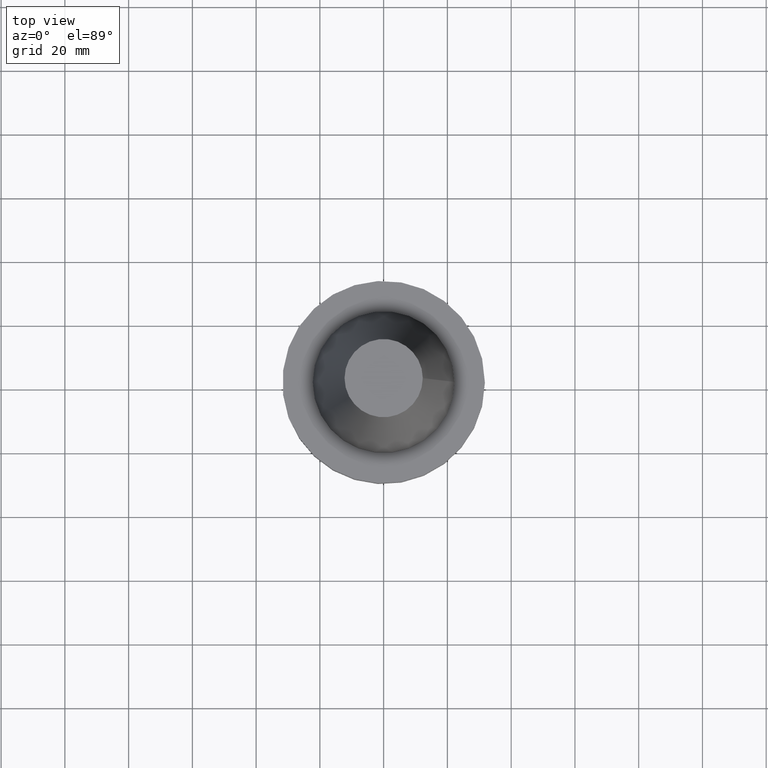
[diagram: clean part render]
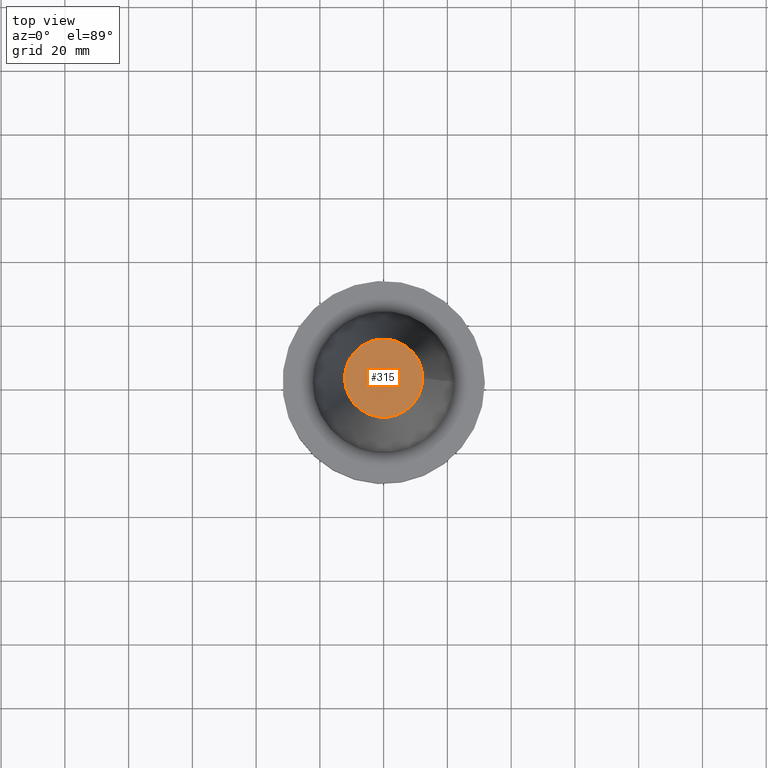
[diagram: same view with one face highlighted and labeled with its STEP entity id]
A machine part, top view. The second image highlights one B-rep face of the part: STEP entity #315.
In plain terms, the highlighted planar face has unit normal (0, 0, -1).
Its self-contained STEP definition (entity closure, byte-faithful):
#5 = AXIS2_PLACEMENT_3D ( 'NONE', #129, #291, #99 ) ;
#9 = FACE_OUTER_BOUND ( 'NONE', #49, .T. ) ;
#36 = DIRECTION ( 'NONE',  ( -0.000000000000000000, -0.000000000000000000, 1.000000000000000000 ) ) ;
#41 = DIRECTION ( 'NONE',  ( 1.000000000000000000, 0.000000000000000000, 0.000000000000000000 ) ) ;
#49 = EDGE_LOOP ( 'NONE', ( #173 ) ) ;
#84 = VERTEX_POINT ( 'NONE', #181 ) ;
#99 = DIRECTION ( 'NONE',  ( -1.000000000000000000, 0.000000000000000000, -0.000000000000000000 ) ) ;
#102 = PLANE ( 'NONE',  #5 ) ;
#129 = CARTESIAN_POINT ( 'NONE',  ( 0.000000000000000000, 12.27178102086201150, 68.25000000000000000 ) ) ;
#173 = ORIENTED_EDGE ( 'NONE', *, *, #269, .T. ) ;
#181 = CARTESIAN_POINT ( 'NONE',  ( 12.27178102086201150, 0.000000000000000000, 68.25000000000000000 ) ) ;
#226 = CARTESIAN_POINT ( 'NONE',  ( 0.000000000000000000, 0.000000000000000000, 68.25000000000000000 ) ) ;
#269 = EDGE_CURVE ( 'NONE', #84, #84, #292, .T. ) ;
#291 = DIRECTION ( 'NONE',  ( 0.000000000000000000, 0.000000000000000000, -1.000000000000000000 ) ) ;
#292 = CIRCLE ( 'NONE', #396, 12.27178102086201150 ) ;
#315 = ADVANCED_FACE ( 'NONE', ( #9 ), #102, .F. ) ;
#396 = AXIS2_PLACEMENT_3D ( 'NONE', #226, #36, #41 ) ;